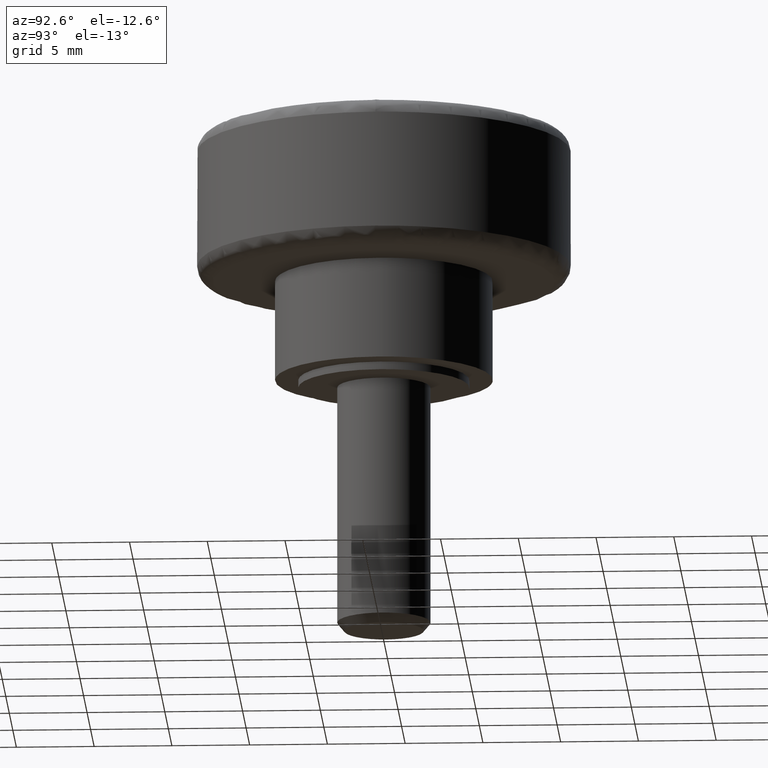
[diagram: clean part render]
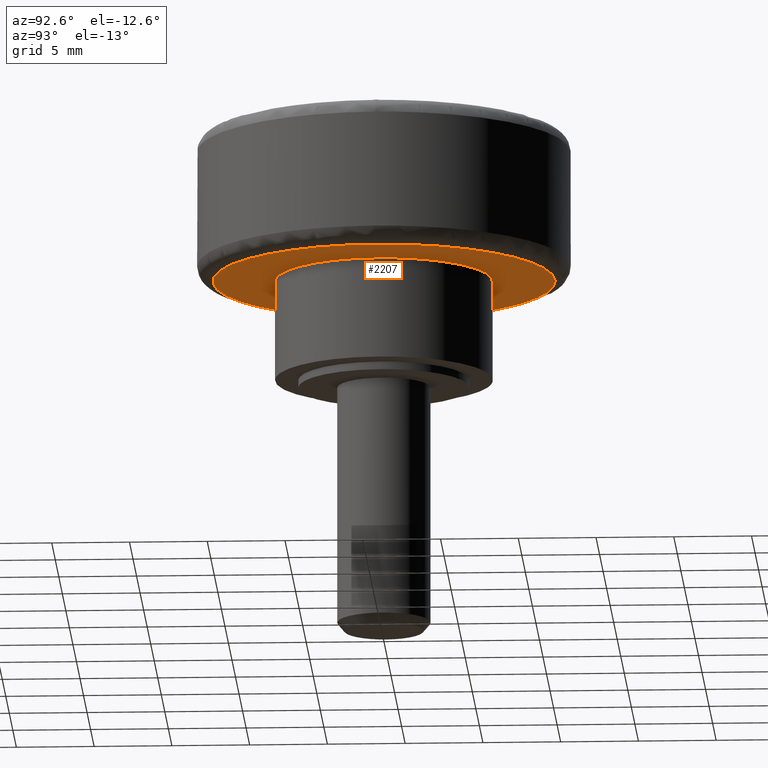
[diagram: same view with one face highlighted and labeled with its STEP entity id]
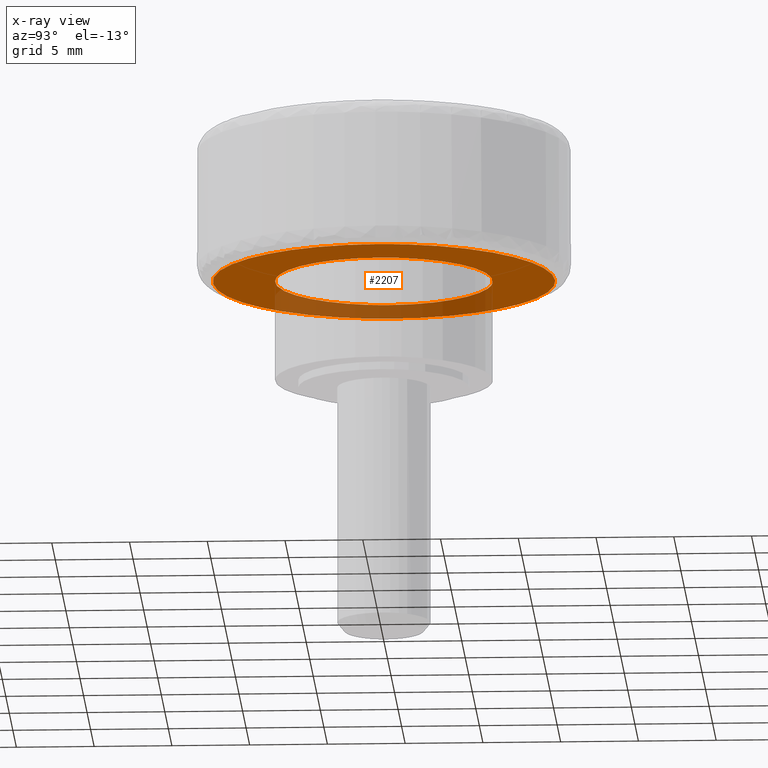
[diagram: x-ray of the same camera — body ghosted, the highlighted face saturated]
A machine part, auxiliary view. The second image highlights one B-rep face of the part: STEP entity #2207.
The next image is the same camera in x-ray: the body ghosted, the highlighted face saturated — about 29% of this face is hidden behind the body in this view.
In plain terms, the highlighted face is a freeform B-spline surface patch.
Its self-contained STEP definition (entity closure, byte-faithful):
#1446=CARTESIAN_POINT('',(-0.826236591573565,6.951067047204727,7.0));
#1447=VERTEX_POINT('',#1446);
#1453=CARTESIAN_POINT('',(7.0,0.0,7.0));
#1454=VERTEX_POINT('',#1453);
#1455=CARTESIAN_POINT('',(-0.826236591573565,6.951067047204728,7.0));
#1456=CARTESIAN_POINT('',(-0.414567295924082,7.0,7.0));
#1457=CARTESIAN_POINT('',(0.0,7.0,7.0));
#1458=CARTESIAN_POINT('',(6.999999999999999,6.999999999999999,6.999999999999999));
#1459=CARTESIAN_POINT('',(7.0,0.0,7.0));
#1467=(BOUNDED_CURVE()B_SPLINE_CURVE(2,(#1455,#1456,#1457,#1458,#1459),.UNSPECIFIED.,.F.,.U.)B_SPLINE_CURVE_WITH_KNOTS((3,2,3),(0.229562547696049,0.250000000000000,0.500000000000000),.UNSPECIFIED.)CURVE()GEOMETRIC_REPRESENTATION_ITEM()RATIONAL_B_SPLINE_CURVE((0.956026899584567,0.976056035241398,1.0,0.707106781186547,1.0))REPRESENTATION_ITEM(''));
#1468=EDGE_CURVE('',#1447,#1454,#1467,.T.);
#1470=CARTESIAN_POINT('',(0.427335286150465,-6.986943863606637,7.0));
#1471=VERTEX_POINT('',#1470);
#1472=CARTESIAN_POINT('',(7.0,0.0,7.0));
#1473=CARTESIAN_POINT('',(7.0,-6.584946708472210,7.0));
#1474=CARTESIAN_POINT('',(0.427335286150465,-6.986943863606637,7.0));
#1482=(BOUNDED_CURVE()B_SPLINE_CURVE(2,(#1472,#1473,#1474),.UNSPECIFIED.,.F.,.U.)B_SPLINE_CURVE_WITH_KNOTS((3,3),(0.500000000000000,0.739333073139896),.UNSPECIFIED.)CURVE()GEOMETRIC_REPRESENTATION_ITEM()RATIONAL_B_SPLINE_CURVE((1.0,0.719603863358162,0.976072279348686))REPRESENTATION_ITEM(''));
#1483=EDGE_CURVE('',#1454,#1471,#1482,.T.);
#1557=CARTESIAN_POINT('',(-7.0,0.0,7.0));
#1558=VERTEX_POINT('',#1557);
#1559=CARTESIAN_POINT('',(0.427335286150465,-6.986943863606637,7.0));
#1560=CARTESIAN_POINT('',(0.213867091497872,-7.0,7.0));
#1561=CARTESIAN_POINT('',(0.0,-7.0,7.0));
#1562=CARTESIAN_POINT('',(-6.999999999999999,-6.999999999999999,6.999999999999999));
#1563=CARTESIAN_POINT('',(-7.0,0.0,7.0));
#1571=(BOUNDED_CURVE()B_SPLINE_CURVE(2,(#1559,#1560,#1561,#1562,#1563),.UNSPECIFIED.,.F.,.U.)B_SPLINE_CURVE_WITH_KNOTS((3,2,3),(0.739333073139896,0.750000000000000,1.0),.UNSPECIFIED.)CURVE()GEOMETRIC_REPRESENTATION_ITEM()RATIONAL_B_SPLINE_CURVE((0.976072279348686,0.987502917828386,1.0,0.707106781186547,1.0))REPRESENTATION_ITEM(''));
#1572=EDGE_CURVE('',#1471,#1558,#1571,.T.);
#1574=CARTESIAN_POINT('',(-7.0,0.0,7.0));
#1575=CARTESIAN_POINT('',(-7.0,6.217224429788684,7.0));
#1576=CARTESIAN_POINT('',(-0.826236591573565,6.951067047204728,7.0));
#1584=(BOUNDED_CURVE()B_SPLINE_CURVE(2,(#1574,#1575,#1576),.UNSPECIFIED.,.F.,.U.)B_SPLINE_CURVE_WITH_KNOTS((3,3),(0.0,0.229562547696049),.UNSPECIFIED.)CURVE()GEOMETRIC_REPRESENTATION_ITEM()RATIONAL_B_SPLINE_CURVE((1.0,0.731050745945150,0.956026899584567))REPRESENTATION_ITEM(''));
#1585=EDGE_CURVE('',#1558,#1447,#1584,.T.);
#1851=CARTESIAN_POINT('',(-0.276431049916277,10.996526082723619,7.0));
#1852=VERTEX_POINT('',#1851);
#1853=CARTESIAN_POINT('',(11.0,0.0,7.0));
#1854=VERTEX_POINT('',#1853);
#1855=CARTESIAN_POINT('',(-0.276431049916277,10.996526082723621,7.000000000000001));
#1856=CARTESIAN_POINT('',(-0.138237353381469,11.000000000000005,7.0));
#1857=CARTESIAN_POINT('',(0.0,11.0,7.0));
#1858=CARTESIAN_POINT('',(11.0,11.0,6.999999999999999));
#1859=CARTESIAN_POINT('',(11.0,0.0,7.0));
#1867=(BOUNDED_CURVE()B_SPLINE_CURVE(2,(#1855,#1856,#1857,#1858,#1859),.UNSPECIFIED.,.F.,.U.)B_SPLINE_CURVE_WITH_KNOTS((3,2,3),(0.245579891769035,0.250000000000000,0.500000000000000),.UNSPECIFIED.)CURVE()GEOMETRIC_REPRESENTATION_ITEM()RATIONAL_B_SPLINE_CURVE((0.989826157679830,0.994821521090915,1.0,0.707106781186548,1.0))REPRESENTATION_ITEM(''));
#1868=EDGE_CURVE('',#1852,#1854,#1867,.T.);
#1886=CARTESIAN_POINT('',(-10.996526082714290,-0.276431049915534,7.0));
#1887=VERTEX_POINT('',#1886);
#1901=CARTESIAN_POINT('',(11.0,0.0,7.0));
#1902=CARTESIAN_POINT('',(11.0,-11.0,6.999999999999999));
#1903=CARTESIAN_POINT('',(0.0,-11.0,7.0));
#1904=CARTESIAN_POINT('',(-10.726956637940763,-11.0,7.0));
#1905=CARTESIAN_POINT('',(-10.996526082714297,-0.276431049915534,7.000000000000001));
#1913=(BOUNDED_CURVE()B_SPLINE_CURVE(2,(#1901,#1902,#1903,#1904,#1905),.UNSPECIFIED.,.F.,.U.)B_SPLINE_CURVE_WITH_KNOTS((3,2,3),(0.500000000000000,0.750000000000000,0.995579891769051),.UNSPECIFIED.)CURVE()GEOMETRIC_REPRESENTATION_ITEM()RATIONAL_B_SPLINE_CURVE((1.0,0.707106781186548,1.0,0.712285260095613,0.989826157679867))REPRESENTATION_ITEM(''));
#1914=EDGE_CURVE('',#1854,#1887,#1913,.T.);
#1936=CARTESIAN_POINT('',(-11.0,0.0,7.0));
#1937=VERTEX_POINT('',#1936);
#1938=CARTESIAN_POINT('',(-11.0,0.0,7.0));
#1939=CARTESIAN_POINT('',(-11.000000000000002,10.726956637939756,7.0));
#1940=CARTESIAN_POINT('',(-0.276431049916277,10.996526082723621,7.0));
#1948=(BOUNDED_CURVE()B_SPLINE_CURVE(2,(#1938,#1939,#1940),.UNSPECIFIED.,.F.,.U.)B_SPLINE_CURVE_WITH_KNOTS((3,3),(0.0,0.245579891769035),.UNSPECIFIED.)CURVE()GEOMETRIC_REPRESENTATION_ITEM()RATIONAL_B_SPLINE_CURVE((1.0,0.712285260095632,0.989826157679830))REPRESENTATION_ITEM(''));
#1949=EDGE_CURVE('',#1937,#1852,#1948,.T.);
#1951=CARTESIAN_POINT('',(-10.996526082714297,-0.276431049915534,6.999999999999999));
#1952=CARTESIAN_POINT('',(-11.000000000000007,-0.138237353380961,7.000000000000001));
#1953=CARTESIAN_POINT('',(-11.0,0.0,7.0));
#1961=(BOUNDED_CURVE()B_SPLINE_CURVE(2,(#1951,#1952,#1953),.UNSPECIFIED.,.F.,.U.)B_SPLINE_CURVE_WITH_KNOTS((3,3),(0.995579891769051,1.0),.UNSPECIFIED.)CURVE()GEOMETRIC_REPRESENTATION_ITEM()RATIONAL_B_SPLINE_CURVE((0.989826157679866,0.994821521090934,1.0))REPRESENTATION_ITEM(''));
#1962=EDGE_CURVE('',#1887,#1937,#1961,.T.);
#2190=CARTESIAN_POINT('',(-12.098899957359730,-12.097814324906221,7.0));
#2191=CARTESIAN_POINT('',(12.098900547445711,-12.097814324906221,7.0));
#2192=CARTESIAN_POINT('',(-12.098899957359730,12.095208067339870,7.0));
#2193=CARTESIAN_POINT('',(12.098900547445711,12.095208067339870,7.0));
#2194=B_SPLINE_SURFACE_WITH_KNOTS('',1,1,((#2190,#2192),(#2191,#2193)),.UNSPECIFIED.,.F.,.F.,.U.,(2,2),(2,2),(0.0,24.197800504805439),(0.0,24.193022392246089),.UNSPECIFIED.);
#2195=ORIENTED_EDGE('',*,*,#1949,.T.);
#2196=ORIENTED_EDGE('',*,*,#1868,.T.);
#2197=ORIENTED_EDGE('',*,*,#1914,.T.);
#2198=ORIENTED_EDGE('',*,*,#1962,.T.);
#2199=EDGE_LOOP('',(#2195,#2196,#2197,#2198));
#2200=FACE_OUTER_BOUND('',#2199,.T.);
#2201=ORIENTED_EDGE('',*,*,#1483,.F.);
#2202=ORIENTED_EDGE('',*,*,#1468,.F.);
#2203=ORIENTED_EDGE('',*,*,#1585,.F.);
#2204=ORIENTED_EDGE('',*,*,#1572,.F.);
#2205=EDGE_LOOP('',(#2201,#2202,#2203,#2204));
#2206=FACE_BOUND('',#2205,.T.);
#2207=ADVANCED_FACE('',(#2200,#2206),#2194,.F.);